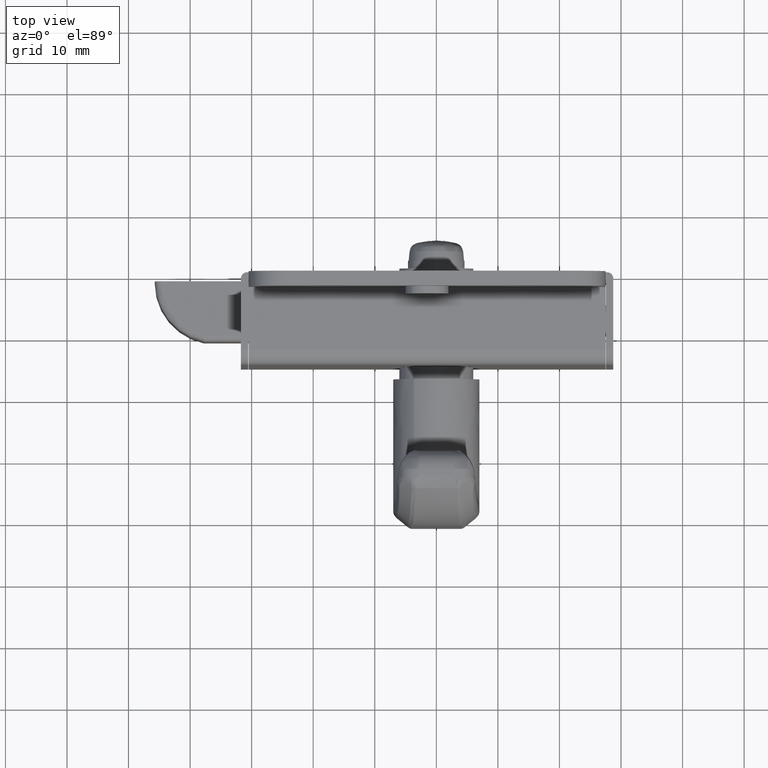
[diagram: clean part render]
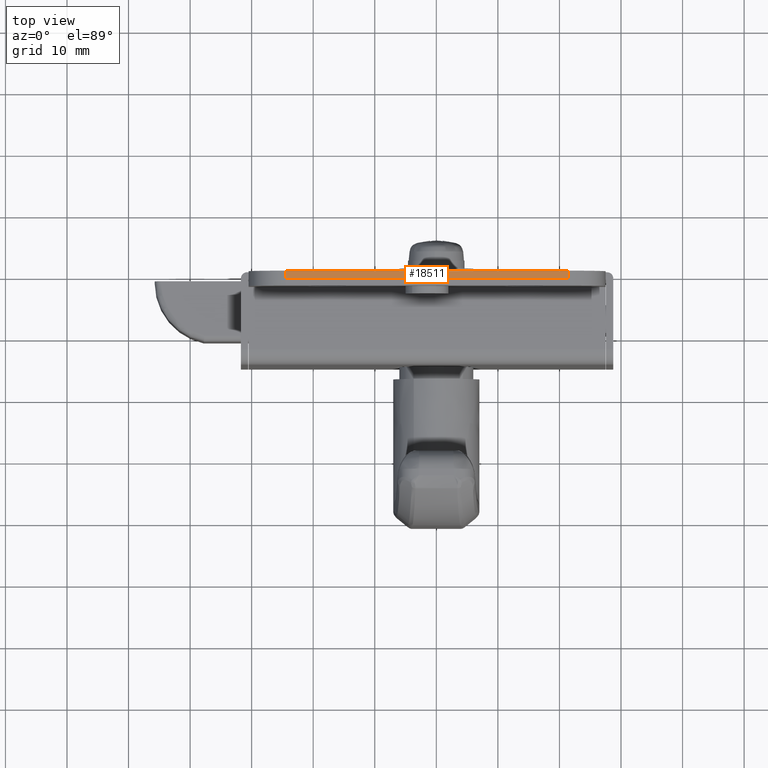
[diagram: same view with one face highlighted and labeled with its STEP entity id]
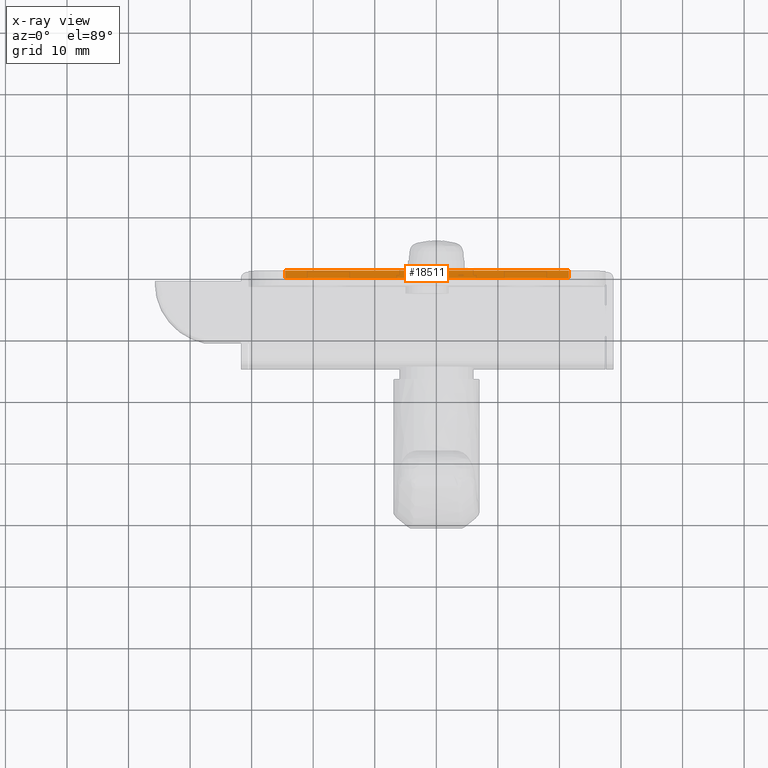
[diagram: x-ray of the same camera — body ghosted, the highlighted face saturated]
A machine part, top view. The second image highlights one B-rep face of the part: STEP entity #18511.
The next image is the same camera in x-ray: the body ghosted, the highlighted face saturated — about 0% of this face is hidden behind the body in this view.
In plain terms, the highlighted face is a freeform B-spline surface patch.
Its self-contained STEP definition (entity closure, byte-faithful):
#18476=CARTESIAN_POINT('',(23.797701824202900,-1.259940053997854,40.0));
#18477=CARTESIAN_POINT('',(-26.797696517150751,-1.259940053997854,40.0));
#18478=CARTESIAN_POINT('',(23.797701824202900,0.059940032540201,40.0));
#18479=CARTESIAN_POINT('',(-26.797696517150751,0.059940032540201,40.0));
#18480=B_SPLINE_SURFACE_WITH_KNOTS('',1,1,((#18476,#18478),(#18477,#18479)),.UNSPECIFIED.,.F.,.F.,.U.,(2,2),(2,2),(0.0,50.595398341353658),(0.041708295834810,0.958291689264029),.UNSPECIFIED.);
#18481=CARTESIAN_POINT('',(21.500001214073951,0.0,40.0));
#18482=VERTEX_POINT('',#18481);
#18483=CARTESIAN_POINT('',(-24.499998785926149,0.0,40.0));
#18484=VERTEX_POINT('',#18483);
#18485=CARTESIAN_POINT('',(21.500001214073951,0.0,40.0));
#18486=CARTESIAN_POINT('',(-24.499998785926149,0.0,40.0));
#18487=QUASI_UNIFORM_CURVE('',1,(#18485,#18486),.UNSPECIFIED.,.F.,.U.);
#18488=EDGE_CURVE('',#18482,#18484,#18487,.T.);
#18489=ORIENTED_EDGE('',*,*,#18488,.T.);
#18490=CARTESIAN_POINT('',(-24.499998785926149,-1.199999999999980,40.0));
#18491=VERTEX_POINT('',#18490);
#18492=CARTESIAN_POINT('',(-24.499998785926149,-1.199999999999980,40.0));
#18493=CARTESIAN_POINT('',(-24.499998785926149,0.0,40.0));
#18494=QUASI_UNIFORM_CURVE('',1,(#18492,#18493),.UNSPECIFIED.,.F.,.U.);
#18495=EDGE_CURVE('',#18491,#18484,#18494,.T.);
#18496=ORIENTED_EDGE('',*,*,#18495,.F.);
#18497=CARTESIAN_POINT('',(21.500001214073951,-1.199999999999980,40.0));
#18498=VERTEX_POINT('',#18497);
#18499=CARTESIAN_POINT('',(21.500001214073951,-1.199999999999980,40.0));
#18500=CARTESIAN_POINT('',(-24.499998785926149,-1.199999999999980,40.0));
#18501=QUASI_UNIFORM_CURVE('',1,(#18499,#18500),.UNSPECIFIED.,.F.,.U.);
#18502=EDGE_CURVE('',#18498,#18491,#18501,.T.);
#18503=ORIENTED_EDGE('',*,*,#18502,.F.);
#18504=CARTESIAN_POINT('',(21.500001214073951,-1.199999999999980,40.0));
#18505=CARTESIAN_POINT('',(21.500001214073951,0.0,40.0));
#18506=QUASI_UNIFORM_CURVE('',1,(#18504,#18505),.UNSPECIFIED.,.F.,.U.);
#18507=EDGE_CURVE('',#18498,#18482,#18506,.T.);
#18508=ORIENTED_EDGE('',*,*,#18507,.T.);
#18509=EDGE_LOOP('',(#18489,#18496,#18503,#18508));
#18510=FACE_OUTER_BOUND('',#18509,.T.);
#18511=ADVANCED_FACE('',(#18510),#18480,.F.);